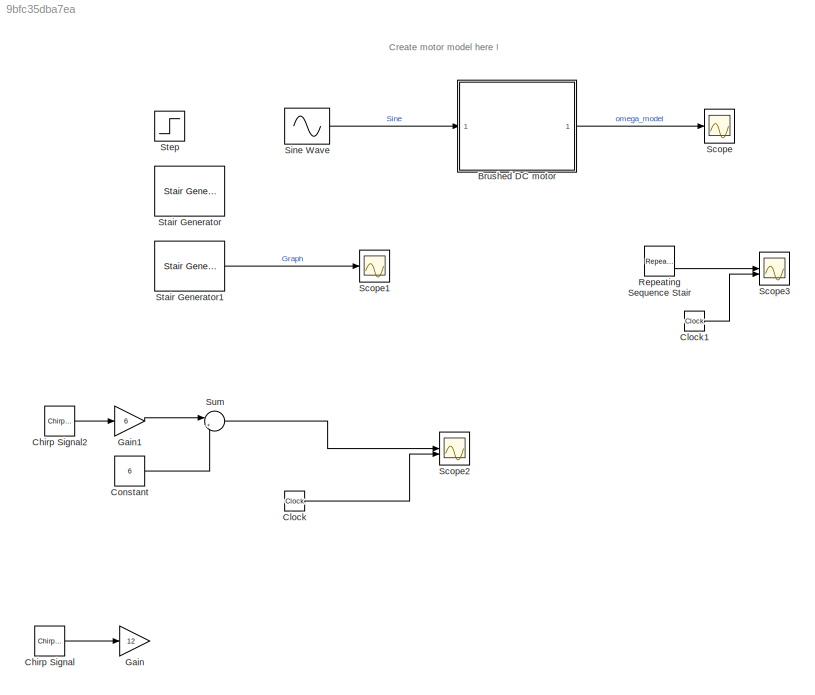
MODEL slx_9bfc35dba7ea
KIND model
CONFIG AbsTol = auto
CONFIG EnableMultiTasking = off
CONFIG FixedStep = 0.001
CONFIG MaxStep = auto
CONFIG MinStep = auto
CONFIG RelTol = 1e-3
CONFIG SampleTimeConstraint = Unconstrained
CONFIG SolverName = FixedStepAuto
CONFIG StartTime = 0.0
CONFIG StopTime = 13
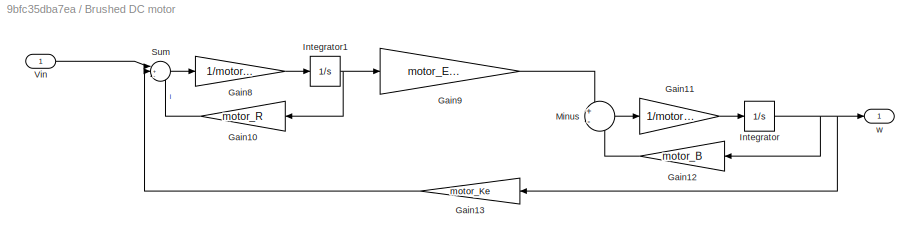
BLOCK [SubSystem] Brushed DC motor
  Commented = on
BLOCK [Gain] Brushed DC motor/Gain10
  Gain = motor_R
BLOCK [Gain] Brushed DC motor/Gain11
  Gain = 1/motor_J
BLOCK [Gain] Brushed DC motor/Gain12
  Gain = motor_B
BLOCK [Gain] Brushed DC motor/Gain13
  Gain = motor_Ke
BLOCK [Gain] Brushed DC motor/Gain8
  Gain = 1/motor_L
BLOCK [Gain] Brushed DC motor/Gain9
  Gain = motor_Eff*motor_Ke
BLOCK [Integrator] Brushed DC motor/Integrator
BLOCK [Integrator] Brushed DC motor/Integrator1
BLOCK [Sum] Brushed DC motor/Minus
  Inputs = +-
BLOCK [Sum] Brushed DC motor/Sum
  Inputs = |+--
BLOCK [Inport] Brushed DC motor/Vin
BLOCK [Outport] Brushed DC motor/w
BLOCK [Reference] Chirp Signal  REF=simulink/Sources/Chirp Signal
  Commented = on
  SourceBlock = simulink/Sources/Chirp Signal
  SourceType = chirp
BLOCK [Reference] Chirp Signal2  REF=simulink/Sources/Chirp Signal
  Commented = on
  SourceBlock = simulink/Sources/Chirp Signal
  SourceType = chirp
BLOCK [Clock] Clock
  Commented = on
BLOCK [Clock] Clock1
  Commented = on
BLOCK [Constant] Constant
  Commented = on
  Value = 6
BLOCK [Gain] Gain
  Commented = on
  Gain = 12
BLOCK [Gain] Gain1
  Commented = on
  Gain = 6
BLOCK [Reference] Repeating Sequence Stair  REF=simulink/Sources/Repeating
Sequence
Stair
  Commented = on
  SourceBlock = simulink/Sources/Repeating\nSequence\nStair
  SourceType = Repeating Sequence Stair
BLOCK [Scope] Scope
  Commented = on
  Floating = off
  NumInputPorts = 1
  ScopeSpecificationString = Simulink.scopes.TimeScopeBlockCfg('CurrentConfiguration', extmgr.ConfigurationSet(extmgr.Configuration('Core','General UI',true),extmgr.Configuration('Core','Source UI',true),extmgr.Configuration('Sources','WiredSimulink',true),extmgr.Configuration('Visuals','Time Domain',true,'SerializedDisplays',{struct('MinYLimReal','-26.38033','MaxYLimReal','237.42293','YLabelReal','','MinYLimMag','0.00000','M...<+1515ch>
BLOCK [Scope] Scope1
  Commented = on
  Floating = off
  NumInputPorts = 1
  ScopeSpecificationString = Simulink.scopes.TimeScopeBlockCfg('CurrentConfiguration', extmgr.ConfigurationSet(extmgr.Configuration('Core','General UI',true),extmgr.Configuration('Core','Source UI',true),extmgr.Configuration('Sources','WiredSimulink',true,'DataLoggingVariableName','ScopeData1'),extmgr.Configuration('Visuals','Time Domain',true,'SerializedDisplays',{struct('MinYLimReal','9.00000','MaxYLimReal','11.00000','YLab...<+1455ch>
BLOCK [Scope] Scope2
  Commented = on
  Floating = off
  NumInputPorts = 2
  ScopeSpecificationString = Simulink.scopes.TimeScopeBlockCfg('CurrentConfiguration', extmgr.ConfigurationSet(extmgr.Configuration('Core','General UI',true),extmgr.Configuration('Core','Source UI',true),extmgr.Configuration('Sources','WiredSimulink',true,'DataLoggingVariableName','ScopeData1'),extmgr.Configuration('Visuals','Time Domain',true,'SerializedDisplays',{struct('MinYLimReal','-1.7215','MaxYLimReal','15.4935','YLabe...<+1475ch>
BLOCK [Scope] Scope3
  Commented = on
  Floating = off
  NumInputPorts = 2
  ScopeSpecificationString = Simulink.scopes.TimeScopeBlockCfg('CurrentConfiguration', extmgr.ConfigurationSet(extmgr.Configuration('Core','General UI',true),extmgr.Configuration('Core','Source UI',true),extmgr.Configuration('Sources','WiredSimulink',true,'DataLoggingVariableName','ScopeData1'),extmgr.Configuration('Visuals','Time Domain',true,'SerializedDisplays',{struct('MinYLimReal','-2.29312','MaxYLimReal','20.63812','YLa...<+1485ch>
BLOCK [Sin] Sine Wave
  Amplitude = 12
  Commented = on
  Frequency = pi/2
  SampleTime = 0
BLOCK [Reference] Stair Generator  REF=eeStairGenerator/Stair Generator
  Commented = on
  LibrarySourceBlock = ee_sl_lib/General Control/Stair Generator
  SourceBlock = eeStairGenerator/Stair Generator
  SourceType = Stair Generator
BLOCK [Reference] Stair Generator1  REF=eeStairGenerator/Stair Generator
  Commented = on
  LibrarySourceBlock = ee_sl_lib/General Control/Stair Generator
  SourceBlock = eeStairGenerator/Stair Generator
  SourceType = Stair Generator
BLOCK [Step] Step
  After = 12
  Commented = on
  SampleTime = 0
BLOCK [Sum] Sum
  Commented = on
  Inputs = |++
ANNOTATION (root): Create motor model here !
LINE Brushed DC motor/Gain10:1 -> Brushed DC motor/Sum:3
LINE Brushed DC motor/Gain11:1 -> Brushed DC motor/Integrator:1
LINE Brushed DC motor/Gain12:1 -> Brushed DC motor/Minus:2
LINE Brushed DC motor/Gain13:1 -> Brushed DC motor/Sum:2
LINE Brushed DC motor/Gain8:1 -> Brushed DC motor/Integrator1:1
LINE Brushed DC motor/Gain9:1 -> Brushed DC motor/Minus:1
NET Brushed DC motor/Integrator1:1 -> Brushed DC motor/Gain10:1, Brushed DC motor/Gain9:1
NET Brushed DC motor/Integrator:1 -> Brushed DC motor/Gain12:1, Brushed DC motor/Gain13:1, Brushed DC motor/w:1
LINE Brushed DC motor/Minus:1 -> Brushed DC motor/Gain11:1
LINE Brushed DC motor/Sum:1 -> Brushed DC motor/Gain8:1
LINE Brushed DC motor/Vin:1 -> Brushed DC motor/Sum:1
LINE Brushed DC motor:1 -> Scope:1
LINE Chirp Signal2:1 -> Gain1:1
LINE Chirp Signal:1 -> Gain:1
LINE Clock1:1 -> Scope3:2
LINE Clock:1 -> Scope2:2
LINE Constant:1 -> Sum:2
LINE Gain1:1 -> Sum:1
LINE Repeating Sequence Stair:1 -> Scope3:1
LINE Sine Wave:1 -> Brushed DC motor:1
LINE Stair Generator1:1 -> Scope1:1
LINE Sum:1 -> Scope2:1
note: NET lines group one-source signal fan-out (src -> all destinations, sorted); 1:1 wires keep LINE
